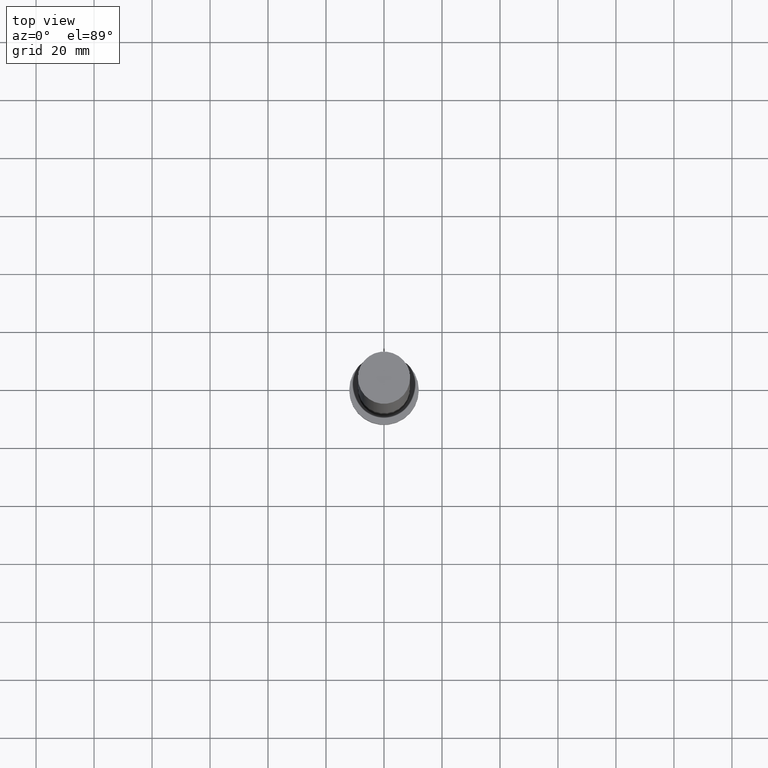
[diagram: clean part render]
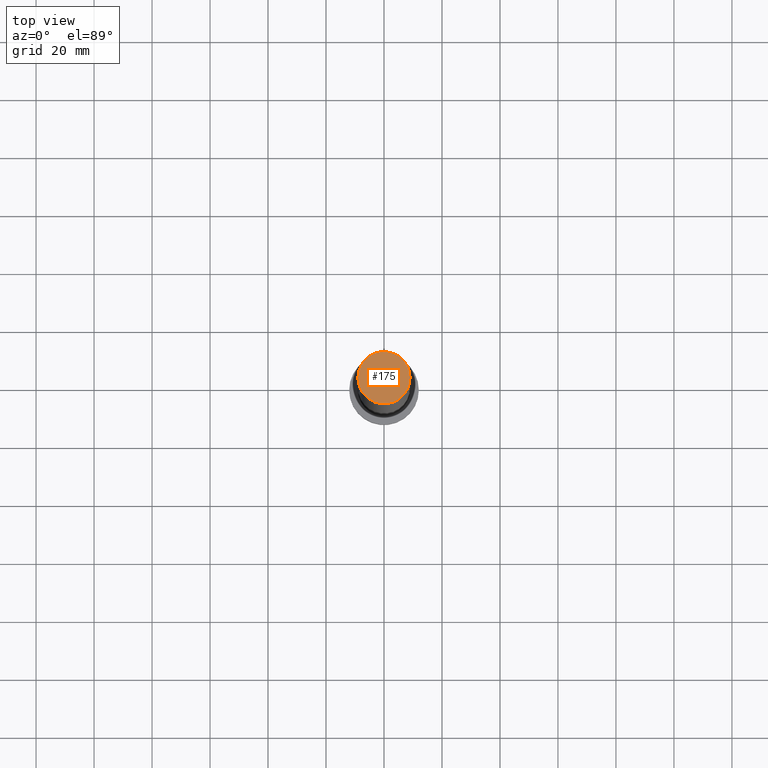
[diagram: same view with one face highlighted and labeled with its STEP entity id]
A machine part, top view. The second image highlights one B-rep face of the part: STEP entity #175.
In plain terms, the highlighted planar face has unit normal (0, 0, 1).
Its self-contained STEP definition (entity closure, byte-faithful):
#18 = VERTEX_POINT ( 'NONE', #203 ) ;
#23 = DIRECTION ( 'NONE',  ( 0.000000000000000000, 0.000000000000000000, 1.000000000000000000 ) ) ;
#30 = AXIS2_PLACEMENT_3D ( 'NONE', #58, #23, #122 ) ;
#43 = EDGE_CURVE ( 'NONE', #59, #18, #149, .T. ) ;
#58 = CARTESIAN_POINT ( 'NONE',  ( 0.000000000000000000, 0.000000000000000000, 250.0000000000000000 ) ) ;
#59 = VERTEX_POINT ( 'NONE', #219 ) ;
#64 = DIRECTION ( 'NONE',  ( 1.000000000000000000, 0.000000000000000000, 0.000000000000000000 ) ) ;
#76 = CIRCLE ( 'NONE', #138, 9.000000000000000000 ) ;
#88 = DIRECTION ( 'NONE',  ( 1.000000000000000000, 0.000000000000000000, -0.000000000000000000 ) ) ;
#110 = PLANE ( 'NONE',  #200 ) ;
#120 = EDGE_CURVE ( 'NONE', #18, #59, #76, .T. ) ;
#122 = DIRECTION ( 'NONE',  ( 1.000000000000000000, 0.000000000000000000, 0.000000000000000000 ) ) ;
#125 = ORIENTED_EDGE ( 'NONE', *, *, #43, .T. ) ;
#138 = AXIS2_PLACEMENT_3D ( 'NONE', #173, #211, #64 ) ;
#149 = CIRCLE ( 'NONE', #30, 9.000000000000000000 ) ;
#151 = FACE_OUTER_BOUND ( 'NONE', #223, .T. ) ;
#170 = ORIENTED_EDGE ( 'NONE', *, *, #120, .T. ) ;
#173 = CARTESIAN_POINT ( 'NONE',  ( 0.000000000000000000, 0.000000000000000000, 250.0000000000000000 ) ) ;
#175 = ADVANCED_FACE ( 'NONE', ( #151 ), #110, .T. ) ;
#200 = AXIS2_PLACEMENT_3D ( 'NONE', #248, #209, #88 ) ;
#203 = CARTESIAN_POINT ( 'NONE',  ( -9.000000000000000000, 0.000000000000000000, 250.0000000000000000 ) ) ;
#209 = DIRECTION ( 'NONE',  ( 0.000000000000000000, 0.000000000000000000, 1.000000000000000000 ) ) ;
#211 = DIRECTION ( 'NONE',  ( 0.000000000000000000, 0.000000000000000000, 1.000000000000000000 ) ) ;
#219 = CARTESIAN_POINT ( 'NONE',  ( 9.000000000000000000, 1.102182119232617714E-15, 250.0000000000000000 ) ) ;
#223 = EDGE_LOOP ( 'NONE', ( #170, #125 ) ) ;
#248 = CARTESIAN_POINT ( 'NONE',  ( 0.000000000000000000, 0.000000000000000000, 250.0000000000000000 ) ) ;